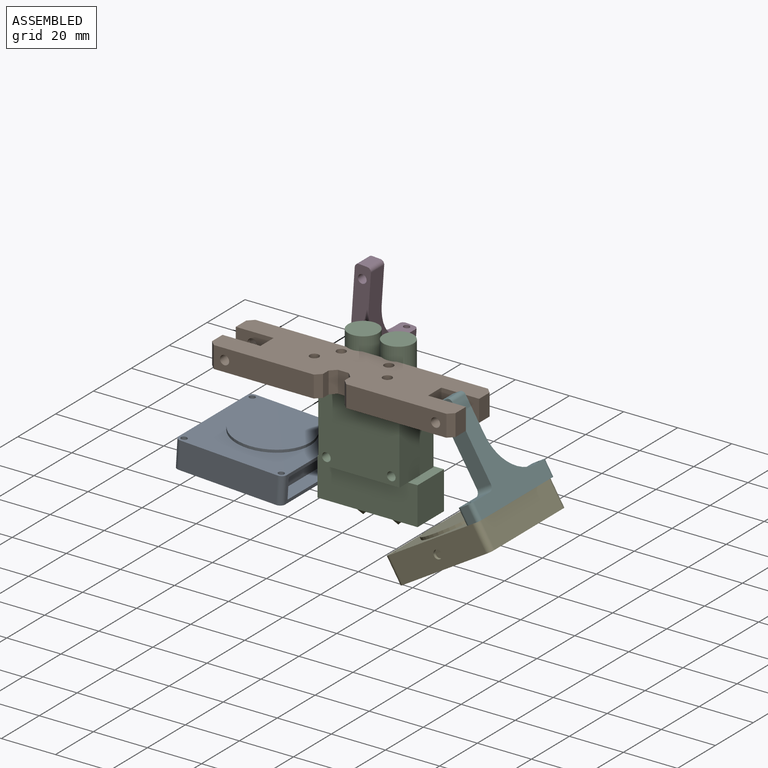
[diagram: assembled view]
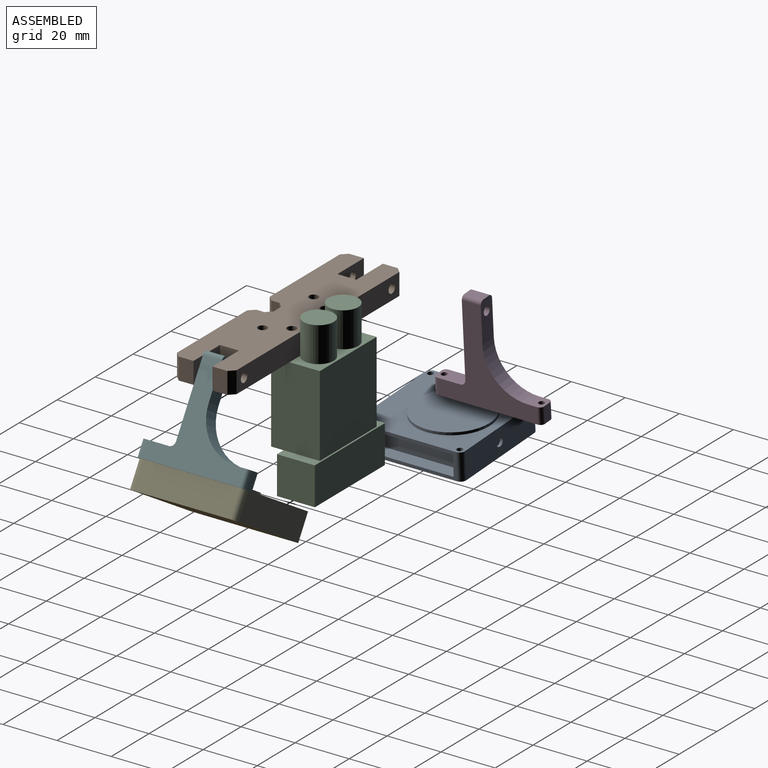
[diagram: assembled view, second angle]
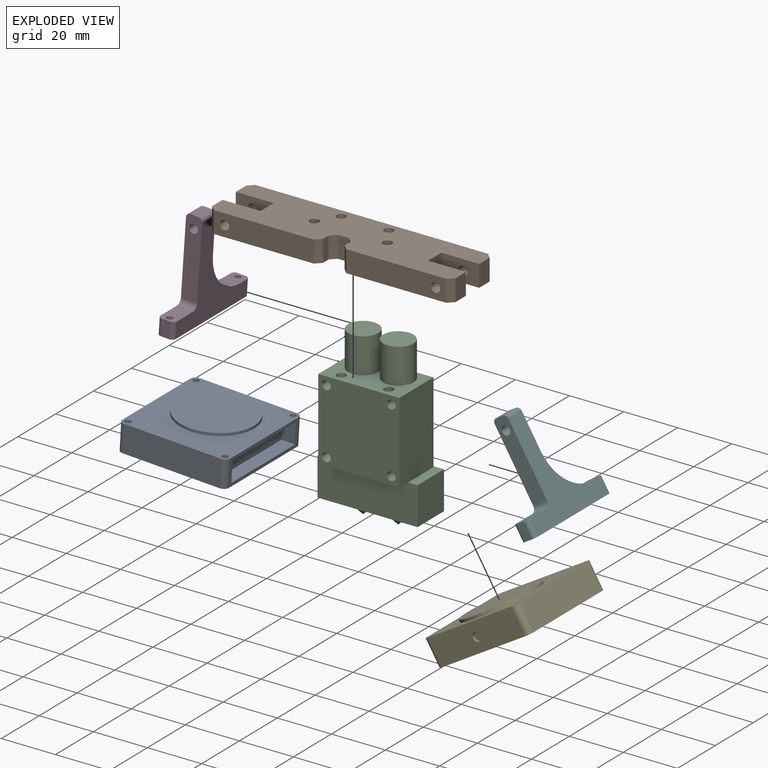
[diagram: exploded view]
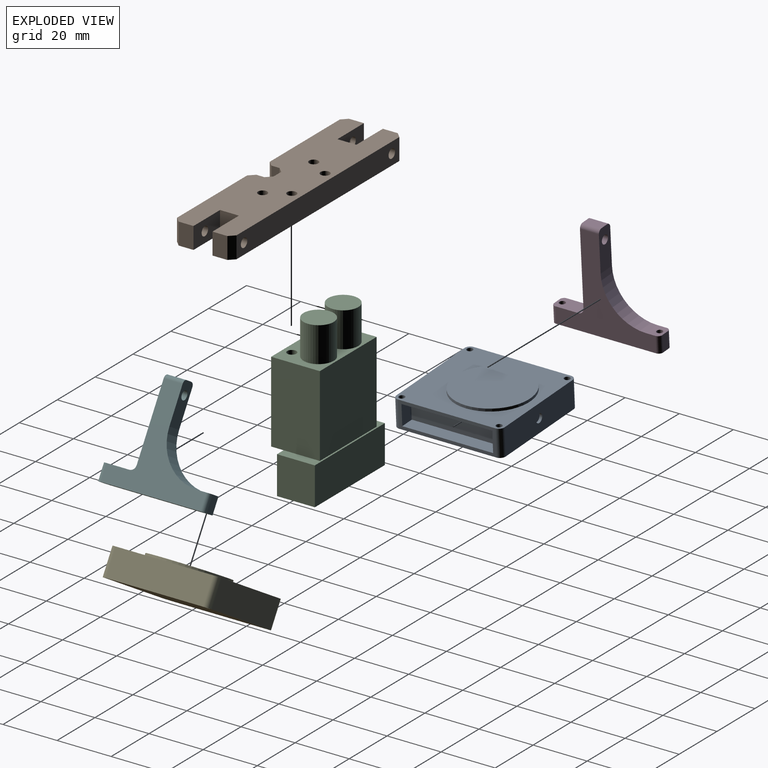
[diagram: exploded view, second angle]
ASSEMBLY  parts=6 mates=3
PART A: 23 faces, bbox 40x40x11 mm
  f0: plane 36x10mm, normal (0,-1,0), area 352mm2, adj f4,f5,f10,f13,f21
  f1: plane 36x10mm, normal (1,0,0), area 360mm2, adj f4,f5,f10,f11
  f2: plane 36x10mm, normal (0,1,0), area 360mm2, adj f4,f5,f11,f12
  f3: plane 36x10mm, normal (-1,0,0), area 104.6mm2, adj f4,f5,f12,f13,f16,f17,f18,f19
  f4: plane 40x40mm, normal (0,0,1), area 965.6mm2, adj f0,f1,f2,f3,f6,f7,f8,f9
  f5: plane 40x40mm, normal (0,0,-1), area 1581.4mm2, adj f0,f1,f2,f3,f6,f7,f8,f9
  f6: cylinder r=1.1mm len=10mm, axis (0,0,-1), area 69.1mm2, adj f4,f5
  f7: cylinder r=1.1mm len=10mm, axis (0,0,-1), area 69.1mm2, adj f4,f5
  f8: cylinder r=1.1mm len=10mm, axis (0,0,-1), area 69.1mm2, adj f4,f5
  f9: cylinder r=1.1mm len=10mm, axis (0,0,-1), area 69.1mm2, adj f4,f5
  f10: cylinder r=2mm len=10mm, axis (0,0,1), area 31.4mm2, adj f0,f1,f4,f5
  f11: cylinder r=2mm len=10mm, axis (0,0,-1), area 31.4mm2, adj f1,f2,f4,f5
  f12: cylinder r=2mm len=10mm, axis (0,0,1), area 31.4mm2, adj f2,f3,f4,f5
  f13: cylinder r=2mm len=10mm, axis (0,0,-1), area 31.4mm2, adj f0,f3,f4,f5
  f14: cylinder r=14mm len=28mm, axis (0,0,-1), area 88mm2, adj f4,f15
  f15: plane 28x28mm, normal (0,0,1), area 615.8mm2, adj f14
  f16: plane 7.6x5mm, normal (0,1,0), area 38mm2, adj f3,f17,f19,f20
  f17: plane 33.6x5mm, normal (0,0,-1), area 168mm2, adj f3,f16,f18,f20
  f18: plane 7.6x5mm, normal (0,-1,0), area 38mm2, adj f3,f17,f19,f20
  f19: plane 33.6x5mm, normal (0,0,1), area 168mm2, adj f3,f16,f18,f20
  f20: plane 33.6x7.6mm, normal (-1,0,0), area 255.4mm2, adj f16,f17,f18,f19
  f21: cylinder r=1.6mm len=3.2mm, axis (0,-1,0), area 10.1mm2, adj f0,f22
  f22: plane 3.2x3.2mm, normal (0,-1,0), area 8mm2, adj f21
PART B: 38 faces, bbox 90x22x8 mm
  f0: plane 37x8mm, normal (0,-1,0), area 286.9mm2, adj f1,f14,f16,f32,f37
  f1: plane 90x22mm, normal (0,0,-1), area 1635.5mm2, adj f0,f2,f3,f4,f5,f6,f7,f8
  f2: plane 14x8mm, normal (0,1,0), area 102.9mm2, adj f1,f3,f13,f14,f16
  f3: plane 8x5.5mm, normal (-1,0,0), area 44mm2, adj f1,f2,f14,f37
  f4: plane 37x8mm, normal (0,-1,0), area 286.9mm2, adj f1,f14,f18,f35,f36
  f5: plane 8x5.5mm, normal (1,0,0), area 44mm2, adj f1,f6,f14,f36
  f6: plane 14x8mm, normal (0,1,0), area 102.9mm2, adj f1,f5,f7,f14,f18
  f7: plane 8x7mm, normal (1,0,0), area 56mm2, adj f1,f6,f8,f14
  f8: plane 14x8mm, normal (0,-1,0), area 102.9mm2, adj f1,f7,f9,f14,f17
  f9: plane 8x5.5mm, normal (1,0,0), area 44mm2, adj f1,f8,f14,f31
  f10: plane 86x8mm, normal (0,1,0), area 669.8mm2, adj f1,f14,f15,f17,f30,f31
  f11: plane 8x5.5mm, normal (-1,0,0), area 44mm2, adj f1,f12,f14,f30
  f12: plane 14x8mm, normal (0,-1,0), area 102.9mm2, adj f1,f11,f13,f14,f15
  f13: plane 8x7mm, normal (-1,0,0), area 56mm2, adj f1,f2,f12,f14
  f14: plane 90x22mm, normal (0,0,1), area 1683.7mm2, adj f0,f2,f3,f4,f5,f6,f7,f8
  f15: cylinder r=1.7mm len=7.5mm, axis (0,-1,0), area 80.1mm2, adj f10,f12
  f16: cylinder r=1.7mm len=7.5mm, axis (0,-1,0), area 80.1mm2, adj f0,f2
  f17: cylinder r=1.7mm len=7.5mm, axis (0,-1,0), area 80.1mm2, adj f8,f10
  f18: cylinder r=1.7mm len=7.5mm, axis (0,-1,0), area 80.1mm2, adj f4,f6
  f19: cylinder r=1.7mm len=4.8mm, axis (0,0,-1), area 51.3mm2, adj f14,f20
  f20: plane 6.5x6.5mm, normal (0,0,-1), area 24.1mm2, adj f19,f21
  f21: cylinder r=3.25mm len=6.5mm, axis (0,0,-1), area 65.3mm2, adj f1,f20
  f22: cylinder r=1.7mm len=4.8mm, axis (0,0,-1), area 51.3mm2, adj f14,f23
  f23: plane 6.5x6.5mm, normal (0,0,-1), area 24.1mm2, adj f22,f24
  f24: cylinder r=3.25mm len=6.5mm, axis (0,0,-1), area 65.3mm2, adj f1,f23
  f25: cylinder r=1.7mm len=8mm, axis (0,0,1), area 85.5mm2, adj f1,f14
  f26: cylinder r=1.7mm len=8mm, axis (0,0,1), area 85.5mm2, adj f1,f14
  f27: plane 8x3mm, normal (-1,0,0), area 24mm2, adj f1,f14,f34,f35
  f28: plane 8x4mm, normal (0,-1,0), area 32mm2, adj f1,f14,f33,f34
  f29: plane 8x3mm, normal (1,0,0), area 24mm2, adj f1,f14,f32,f33
  f30: plane 8x2mm, normal (-0.71,0.71,0), area 22.6mm2, adj f1,f10,f11,f14
  f31: plane 8x2mm, normal (0.71,0.71,0), area 22.6mm2, adj f1,f9,f10,f14
  f32: plane 8x2mm, normal (0.71,-0.71,0), area 22.6mm2, adj f0,f1,f14,f29
  f33: plane 8x2mm, normal (0.71,-0.71,0), area 22.6mm2, adj f1,f14,f28,f29
  f34: plane 8x2mm, normal (-0.71,-0.71,0), area 22.6mm2, adj f1,f14,f27,f28
  f35: plane 8x2mm, normal (-0.71,-0.71,0), area 22.6mm2, adj f1,f4,f14,f27
  f36: plane 8x2mm, normal (0.71,-0.71,0), area 22.6mm2, adj f1,f4,f5,f14
  f37: plane 8x2mm, normal (-0.71,-0.71,0), area 22.6mm2, adj f0,f1,f3,f14
PART C: 30 faces, bbox 37x18.6x62 mm
  f0: plane 30x4.6mm, normal (0,0,-1), area 138mm2, adj f3,f4,f6,f24
  f1: cylinder r=1.7mm len=9mm, axis (0,0,1), area 95.1mm2, adj f7,f13,f17
  f2: cylinder r=1.7mm len=9mm, axis (0,0,1), area 95.1mm2, adj f7,f12,f15
  f3: plane 30x30mm, normal (0,-1,0), area 867.8mm2, adj f0,f4,f6,f7,f15,f17,f19,f21
  f4: plane 30x18mm, normal (1,0,0), area 540mm2, adj f0,f3,f5,f7,f22
  f5: plane 30x30mm, normal (0,1,0), area 900mm2, adj f4,f6,f7,f22
  f6: plane 30x18mm, normal (-1,0,0), area 540mm2, adj f0,f3,f5,f7,f22
  f7: plane 30x18mm, normal (0,0,1), area 324.8mm2, adj f1,f2,f3,f4,f5,f6,f8,f10
  f8: cylinder r=5.6mm len=13mm, axis (0,0,-1), area 457.4mm2, adj f7,f9
  f9: plane 11.2x11.2mm, normal (0,0,1), area 98.5mm2, adj f8
  f10: cylinder r=5.6mm len=13mm, axis (0,0,-1), area 457.4mm2, adj f7,f11
  f11: plane 11.2x11.2mm, normal (0,0,1), area 98.5mm2, adj f10
  f12: cone r=0mm half-angle=59deg, axis (0,0,1), area 10.6mm2, adj f2
  f13: cone r=0mm half-angle=59deg, axis (0,0,1), area 10.6mm2, adj f1
  f14: cone r=0mm half-angle=59deg, axis (0,-1,0), area 9.4mm2, adj f15
  f15: cylinder r=1.6mm len=5mm, axis (0,-1,0), area 49.2mm2, adj f2,f3,f14
  f16: cone r=0mm half-angle=59deg, axis (0,-1,0), area 9.4mm2, adj f17
  f17: cylinder r=1.6mm len=5mm, axis (0,-1,0), area 49.2mm2, adj f1,f3,f16
  f18: cone r=0mm half-angle=59deg, axis (0,-1,0), area 9.4mm2, adj f19
  f19: cylinder r=1.6mm len=5mm, axis (0,-1,0), area 50.3mm2, adj f3,f18
  f20: cone r=0mm half-angle=59deg, axis (0,-1,0), area 9.4mm2, adj f21
  f21: cylinder r=1.6mm len=5mm, axis (0,-1,0), area 50.3mm2, adj f3,f20
  f22: plane 37x14mm, normal (0,0,1), area 116mm2, adj f4,f5,f6,f23,f24,f25,f26
  f23: plane 14x14mm, normal (1,0,0), area 196mm2, adj f22,f24,f26,f27
  f24: plane 37x14mm, normal (0,-1,0), area 518mm2, adj f0,f22,f23,f25,f27
  f25: plane 14x14mm, normal (-1,0,0), area 196mm2, adj f22,f24,f26,f27
  f26: plane 37x14mm, normal (0,1,0), area 518mm2, adj f22,f23,f25,f27
  f27: plane 37x14mm, normal (0,0,-1), area 360.9mm2, adj f23,f24,f25,f26,f28,f29
  f28: cone r=5mm half-angle=45deg, axis (0,0,1), area 111.1mm2, adj f27
  f29: cone r=5mm half-angle=45deg, axis (0,0,1), area 111.1mm2, adj f27
PART D: 21 faces, bbox 6x40x37 mm
  f0: plane 10x6mm, normal (0,0,1), area 55.2mm2, adj f1,f2,f4,f13,f14,f17,f19
  f1: plane 6x3mm, normal (0,-1,0), area 18mm2, adj f0,f6,f14,f17
  f2: plane 37x35.5mm, normal (1,0,0), area 484.3mm2, adj f0,f5,f6,f7,f8,f10,f14,f15
  f3: plane 6x3mm, normal (0,1,0), area 18mm2, adj f5,f6,f15,f16
  f4: plane 37x35.5mm, normal (-1,0,0), area 484.3mm2, adj f0,f5,f6,f7,f8,f11,f16,f17
  f5: plane 6x5mm, normal (0,0,1), area 25.2mm2, adj f2,f3,f4,f12,f15,f16,f18
  f6: plane 40x6mm, normal (0,0,-1), area 230.5mm2, adj f1,f2,f3,f4,f12,f13,f14,f15
  f7: plane 29x6mm, normal (0,-1,0), area 165mm2, adj f2,f4,f9,f10,f11,f19,f20
  f8: plane 15x6mm, normal (0,1,0), area 81mm2, adj f2,f4,f9,f10,f11,f18,f20
  f9: plane 7x3mm, normal (0,0,1), area 21mm2, adj f7,f8,f10,f11
  f10: cylinder r=1.5mm len=7mm, axis (0,-1,0), area 16.5mm2, adj f2,f7,f8,f9
  f11: cylinder r=1.5mm len=7mm, axis (0,1,0), area 16.5mm2, adj f4,f7,f8,f9
  f12: cylinder r=1.1mm len=6mm, axis (0,0,-1), area 41.5mm2, adj f5,f6
  f13: cylinder r=1.1mm len=6mm, axis (0,0,-1), area 41.5mm2, adj f0,f6
  f14: cylinder r=1.5mm len=6mm, axis (0,0,1), area 14.1mm2, adj f0,f1,f2,f6
  f15: cylinder r=1.5mm len=6mm, axis (0,0,-1), area 14.1mm2, adj f2,f3,f5,f6
  f16: cylinder r=1.5mm len=6mm, axis (0,0,1), area 14.1mm2, adj f3,f4,f5,f6
  f17: cylinder r=1.5mm len=6mm, axis (0,0,-1), area 14.1mm2, adj f0,f1,f4,f6
  f18: cylinder r=16mm len=16mm, axis (-1,0,0), area 150.8mm2, adj f2,f4,f5,f8
  f19: cylinder r=2mm len=6mm, axis (1,0,0), area 18.8mm2, adj f0,f2,f4,f7
  f20: cylinder r=1.6mm len=7mm, axis (0,-1,0), area 70.4mm2, adj f7,f8
PART E: same geometry as A
PART F: same geometry as D
PLACE A rot(axis=(0.03,0,1),180deg) t=(-48.72,11.78,-20.86)mm
PLACE B t=(0,-12.55,26.12)mm
PLACE C t=(0,0.65,-3.88)mm fixed
PLACE D rot(axis=(0,1,0),3.9deg) t=(-30.59,42.01,5.77)mm
PLACE E rot(axis=(0,-1,0),31.2deg) t=(45.54,-8.05,-15.48)mm
PLACE F rot(axis=(0,-1,0),31.2deg) t=(55.77,-8.05,2.4)mm
MATE revolute F.f20 <-> B.f17  axis (0,-1,0) through (39,-16.05,30.12)mm
MATE fastened E.f9 <-> F.f13  axis (-0.52,0,0.86) through (55.77,-26.05,2.4)mm
MATE fastened B.f26 <-> C.f1  axis (0,0,-1) through (8.8,-5.05,26.12)mm
